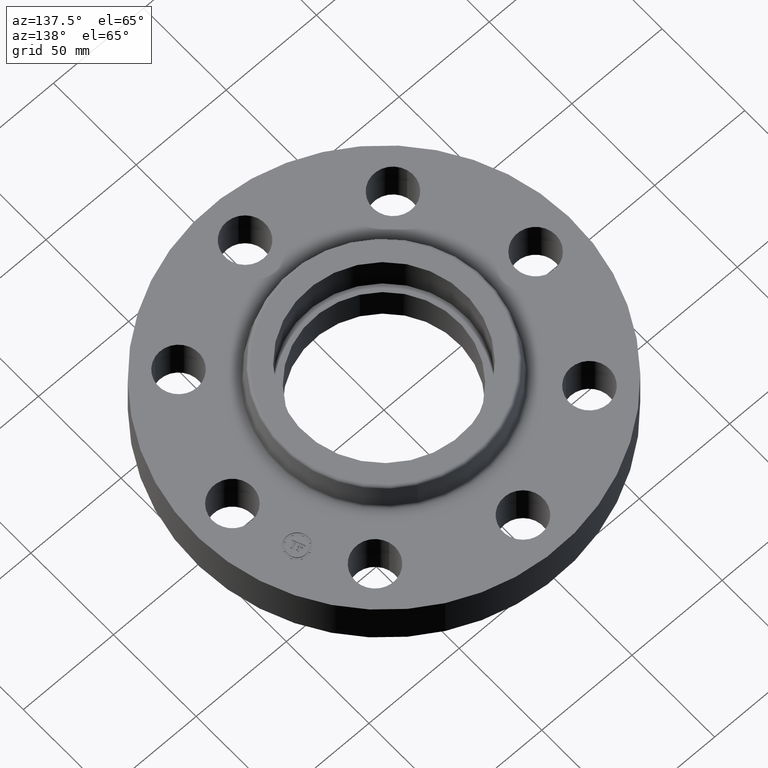
[diagram: clean part render]
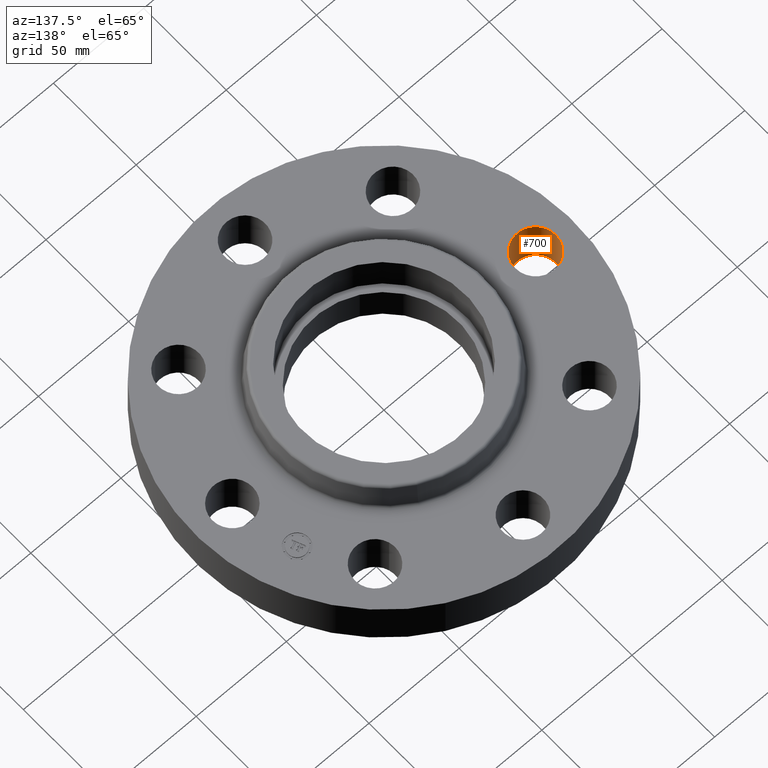
[diagram: same view with one face highlighted and labeled with its STEP entity id]
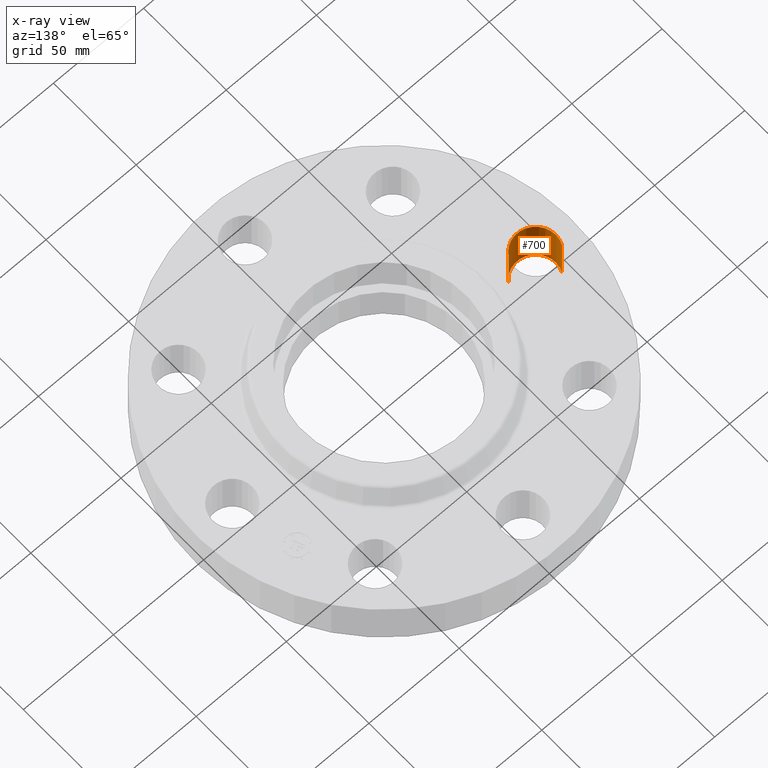
[diagram: x-ray of the same camera — body ghosted, the highlighted face saturated]
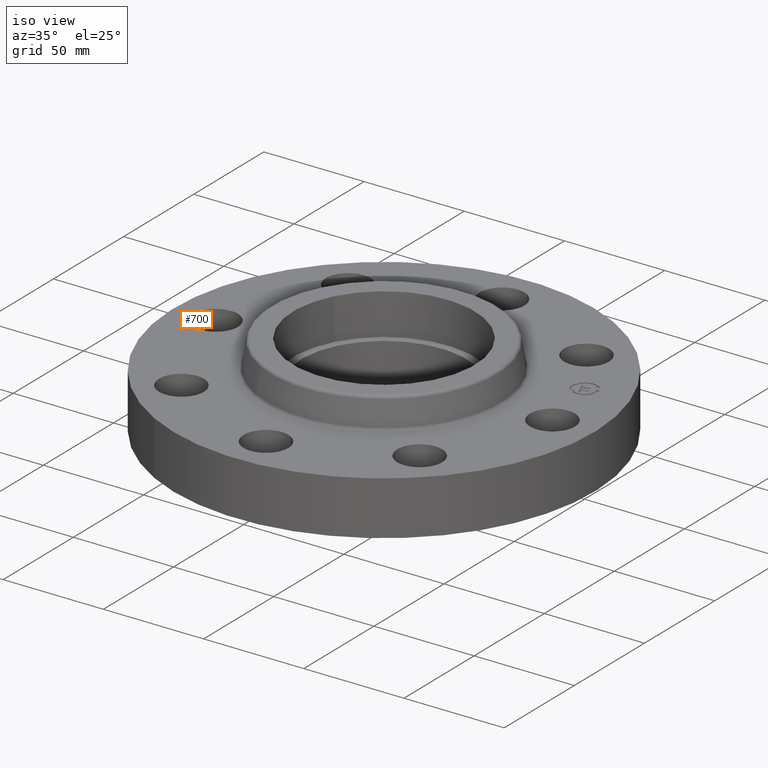
[diagram: same view with one face highlighted and labeled with its STEP entity id]
A machine part, auxiliary view. The second image highlights one B-rep face of the part: STEP entity #700.
The next image is the same camera in x-ray: the body ghosted, the highlighted face saturated — about 0% of this face is hidden behind the body in this view.
A second angle (iso view) of the same face is appended — the face is thin or edge-on in the first view.
In plain terms, the highlighted cylindrical surface (edge-blend (fillet) strip) has radius 11.176 mm, axis along (-0, 0, -1).
Its self-contained STEP definition (entity closure, byte-faithful):
#244=AXIS2_PLACEMENT_3D('Circle Axis2P3D',#242,#243,$) ;
#661=AXIS2_PLACEMENT_3D('Cylinder Axis2P3D',#658,#659,#660) ;
#691=AXIS2_PLACEMENT_3D('Circle Axis2P3D',#689,#690,$) ;
#242=CARTESIAN_POINT('Axis2P3D Location',(-3.31000000001,-8.39223703654E-016,0.)) ;
#246=CARTESIAN_POINT('Vertex',(-2.92386367278,-0.210947236987,0.)) ;
#248=CARTESIAN_POINT('Vertex',(-3.69613632725,0.210947236987,0.)) ;
#658=CARTESIAN_POINT('Axis2P3D Location',(-3.31000000001,-4.05358090519E-016,1.05606299213)) ;
#663=CARTESIAN_POINT('Line Origine',(-3.69613632725,0.210947236987,0.530000000002)) ;
#667=CARTESIAN_POINT('Vertex',(-3.69613632725,0.210947236987,1.06)) ;
#670=CARTESIAN_POINT('Line Origine',(-2.92386367278,-0.210947236987,0.530000000002)) ;
#674=CARTESIAN_POINT('Vertex',(-2.92386367278,-0.210947236987,1.06)) ;
#689=CARTESIAN_POINT('Axis2P3D Location',(-3.31000000001,-4.05358090519E-016,1.06)) ;
#243=DIRECTION('Axis2P3D Direction',(0.,0.,-0.0393700787402)) ;
#659=DIRECTION('Axis2P3D Direction',(-0.,0.,-0.0393700787402)) ;
#660=DIRECTION('Axis2P3D XDirection',(0.0345504945626,-0.0188750212049,-0.)) ;
#664=DIRECTION('Vector Direction',(0.,0.,-0.0393700787402)) ;
#671=DIRECTION('Vector Direction',(0.,0.,-0.0393700787402)) ;
#690=DIRECTION('Axis2P3D Direction',(-0.,0.,-0.0393700787402)) ;
#665=VECTOR('Line Direction',#664,0.0393700787402) ;
#672=VECTOR('Line Direction',#671,0.0393700787402) ;
#695=ORIENTED_EDGE('',*,*,#676,.F.) ;
#696=ORIENTED_EDGE('',*,*,#250,.T.) ;
#697=ORIENTED_EDGE('',*,*,#669,.T.) ;
#698=ORIENTED_EDGE('',*,*,#693,.F.) ;
#700=ADVANCED_FACE('PartBody',(#699),#662,.F.) ;
#245=CIRCLE('generated circle',#244,0.440000000002) ;
#692=CIRCLE('generated circle',#691,0.440000000002) ;
#662=CYLINDRICAL_SURFACE('generated cylinder',#661,0.440000000002) ;
#250=EDGE_CURVE('',#247,#249,#245,.T.) ;
#669=EDGE_CURVE('',#249,#668,#666,.F.) ;
#676=EDGE_CURVE('',#247,#675,#673,.F.) ;
#693=EDGE_CURVE('',#675,#668,#692,.T.) ;
#694=EDGE_LOOP('',(#695,#696,#697,#698)) ;
#699=FACE_OUTER_BOUND('',#694,.T.) ;
#666=LINE('Line',#663,#665) ;
#673=LINE('Line',#670,#672) ;
#247=VERTEX_POINT('',#246) ;
#249=VERTEX_POINT('',#248) ;
#668=VERTEX_POINT('',#667) ;
#675=VERTEX_POINT('',#674) ;